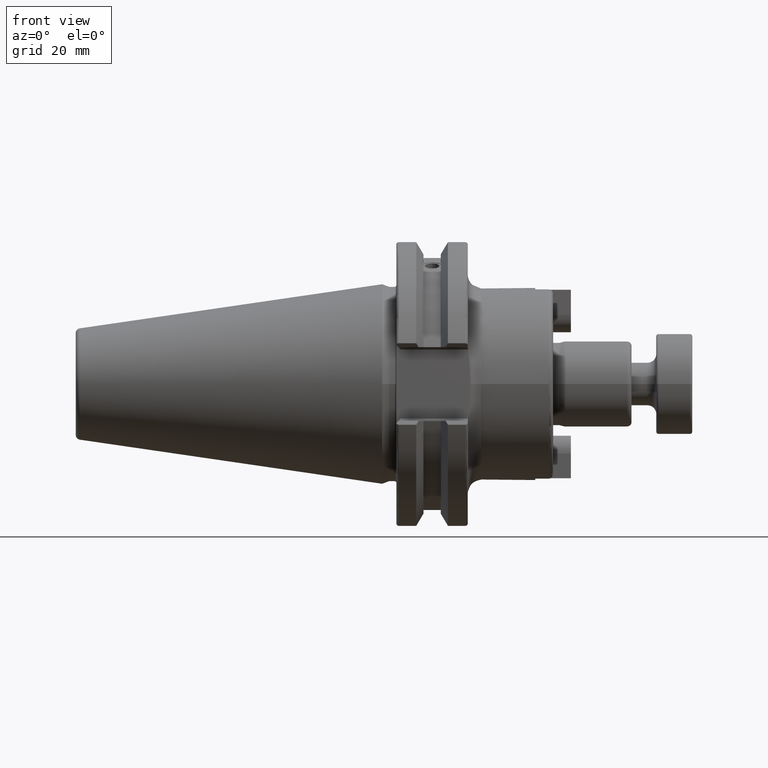
[diagram: clean part render]
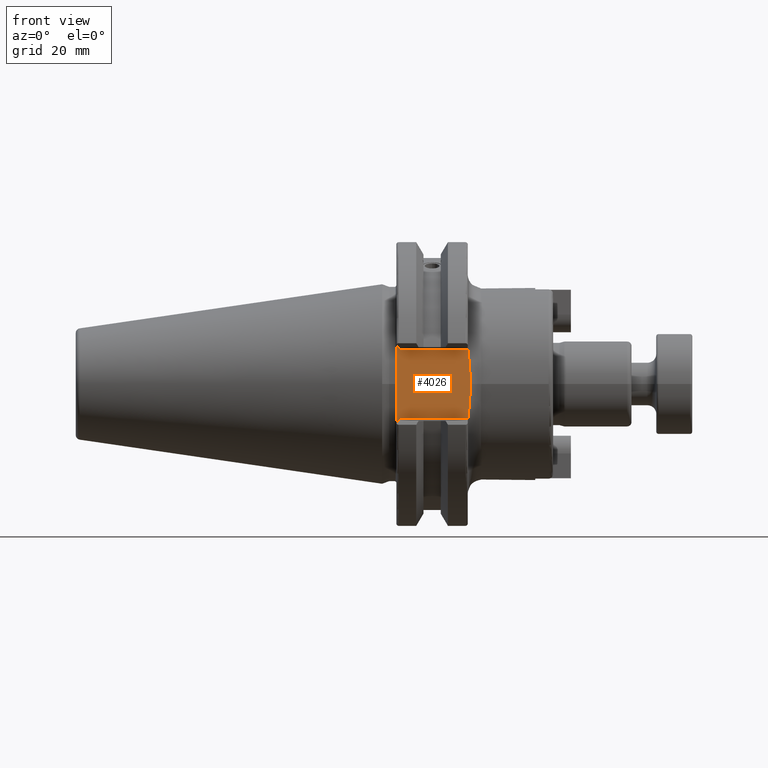
[diagram: same view with one face highlighted and labeled with its STEP entity id]
A machine part, front view. The second image highlights one B-rep face of the part: STEP entity #4026.
In plain terms, the highlighted planar face has unit normal (0, 1, 0).
Its self-contained STEP definition (entity closure, byte-faithful):
#718=CARTESIAN_POINT('',(7.756786870116E-1,-8.897637795276E-1,
9.470803800449E-7));
#719=CARTESIAN_POINT('',(7.756787067109E-1,-8.897637795276E-1,
-2.390414581369E-2));
#720=CARTESIAN_POINT('',(7.741677194975E-1,-8.897637795276E-1,
-7.271182373911E-2));
#721=CARTESIAN_POINT('',(7.672731726272E-1,-8.897637795276E-1,
-1.519448678587E-1));
#722=CARTESIAN_POINT('',(7.590357071437E-1,-8.897637795276E-1,
-2.281175139639E-1));
#723=CARTESIAN_POINT('',(7.545991707140E-1,-8.897637795276E-1,
-2.780565098569E-1));
#724=CARTESIAN_POINT('',(7.530794966055E-1,-8.897637795276E-1,
-3.027559055118E-1));
#1168=CARTESIAN_POINT('',(7.530794966055E-1,-8.897637795276E-1,
3.027559055118E-1));
#1169=CARTESIAN_POINT('',(7.545986661702E-1,-8.897637795276E-1,
2.780647102517E-1));
#1170=CARTESIAN_POINT('',(7.590338579141E-1,-8.897637795276E-1,
2.281344385967E-1));
#1171=CARTESIAN_POINT('',(7.672713849968E-1,-8.897637795276E-1,
1.519649355457E-1));
#1172=CARTESIAN_POINT('',(7.741696764E-1,-8.897637795276E-1,7.268661059240E-2));
#1173=CARTESIAN_POINT('',(7.756786673224E-1,-8.897637795276E-1,
2.389378941772E-2));
#1174=CARTESIAN_POINT('',(7.756786870116E-1,-8.897637795276E-1,
9.470803800449E-7));
#1182=DIRECTION('',(-1.E0,0.E0,0.E0));
#1183=VECTOR('',#1182,5.887094178654E-1);
#1184=CARTESIAN_POINT('',(7.530794966055E-1,-8.897637795276E-1,
-3.027559055118E-1));
#1185=LINE('',#1184,#1183);
#1186=DIRECTION('',(0.E0,0.E0,1.E0));
#1187=VECTOR('',#1186,6.842519685039E-1);
#1188=CARTESIAN_POINT('',(1.25E-1,-8.897637795276E-1,-3.421259842520E-1));
#1189=LINE('',#1188,#1187);
#1194=DIRECTION('',(-1.E0,0.E0,0.E0));
#1195=VECTOR('',#1194,5.887094178654E-1);
#1196=CARTESIAN_POINT('',(7.530794966055E-1,-8.897637795276E-1,
3.027559055118E-1));
#1197=LINE('',#1196,#1195);
#1202=DIRECTION('',(-7.071067811865E-1,0.E0,7.071067811865E-1));
#1203=VECTOR('',#1202,5.567769930603E-2);
#1204=CARTESIAN_POINT('',(1.643700787402E-1,-8.897637795276E-1,
3.027559055118E-1));
#1205=LINE('',#1204,#1203);
#1697=DIRECTION('',(7.071067811865E-1,0.E0,7.071067811865E-1));
#1698=VECTOR('',#1697,5.567769930603E-2);
#1699=CARTESIAN_POINT('',(1.25E-1,-8.897637795276E-1,-3.421259842520E-1));
#1700=LINE('',#1699,#1698);
#2382=CARTESIAN_POINT('',(1.25E-1,-8.897637795276E-1,3.421259842520E-1));
#2384=VERTEX_POINT('',#2382);
#2391=CARTESIAN_POINT('',(1.25E-1,-8.897637795276E-1,-3.421259842520E-1));
#2393=VERTEX_POINT('',#2391);
#2406=CARTESIAN_POINT('',(1.643700787402E-1,-8.897637795276E-1,
-3.027559055118E-1));
#2407=VERTEX_POINT('',#2406);
#2408=CARTESIAN_POINT('',(1.643700787402E-1,-8.897637795276E-1,
3.027559055118E-1));
#2409=VERTEX_POINT('',#2408);
#2558=VERTEX_POINT('',#718);
#2559=VERTEX_POINT('',#724);
#2560=VERTEX_POINT('',#1168);
#4008=CARTESIAN_POINT('',(0.E0,-8.897637795276E-1,0.E0));
#4009=DIRECTION('',(0.E0,1.E0,0.E0));
#4010=DIRECTION('',(1.E0,0.E0,0.E0));
#4011=AXIS2_PLACEMENT_3D('',#4008,#4009,#4010);
#4012=PLANE('',#4011);
#4014=ORIENTED_EDGE('',*,*,#4013,.F.);
#4015=ORIENTED_EDGE('',*,*,#4001,.T.);
#4016=ORIENTED_EDGE('',*,*,#3378,.T.);
#4018=ORIENTED_EDGE('',*,*,#4017,.T.);
#4020=ORIENTED_EDGE('',*,*,#4019,.F.);
#4021=ORIENTED_EDGE('',*,*,#2812,.T.);
#4023=ORIENTED_EDGE('',*,*,#4022,.F.);
#4024=EDGE_LOOP('',(#4014,#4015,#4016,#4018,#4020,#4021,#4023));
#4025=FACE_OUTER_BOUND('',#4024,.F.);
#4026=ADVANCED_FACE('',(#4025),#4012,.F.);
#725=B_SPLINE_CURVE_WITH_KNOTS('',3,(#718,#719,#720,#721,#722,#723,#724),
.UNSPECIFIED.,.F.,.F.,(4,1,1,1,4),(0.E0,2.5E-1,5.E-1,7.5E-1,1.E0),
.UNSPECIFIED.);
#1175=B_SPLINE_CURVE_WITH_KNOTS('',3,(#1168,#1169,#1170,#1171,#1172,#1173,
#1174),.UNSPECIFIED.,.F.,.F.,(4,1,1,1,4),(0.E0,2.5E-1,5.E-1,7.5E-1,1.E0),
.UNSPECIFIED.);
#2812=EDGE_CURVE('',#2393,#2384,#1189,.T.);
#3378=EDGE_CURVE('',#2558,#2559,#725,.T.);
#4001=EDGE_CURVE('',#2560,#2558,#1175,.T.);
#4013=EDGE_CURVE('',#2560,#2409,#1197,.T.);
#4017=EDGE_CURVE('',#2559,#2407,#1185,.T.);
#4019=EDGE_CURVE('',#2393,#2407,#1700,.T.);
#4022=EDGE_CURVE('',#2409,#2384,#1205,.T.);